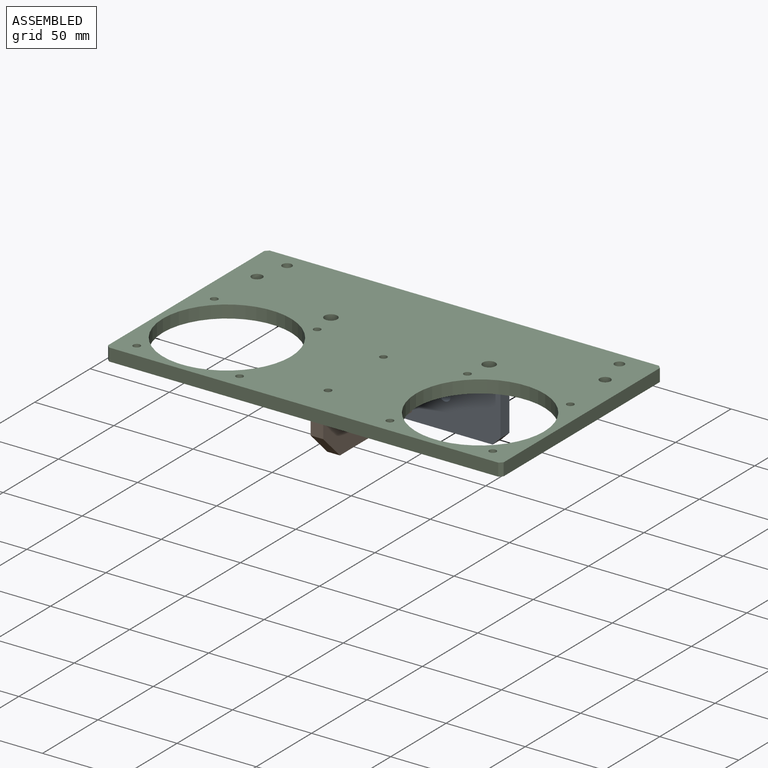
[diagram: assembled view]
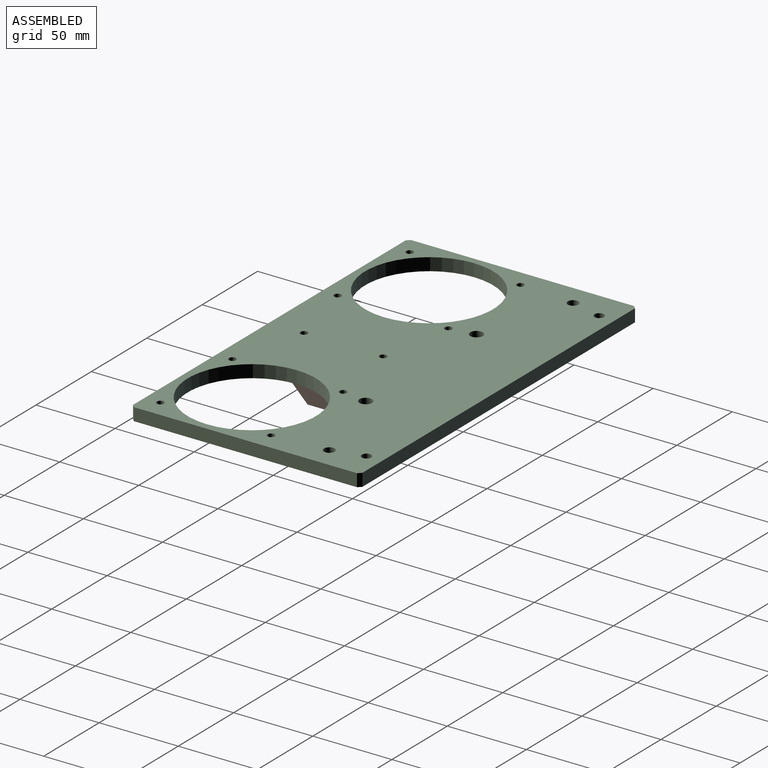
[diagram: assembled view, second angle]
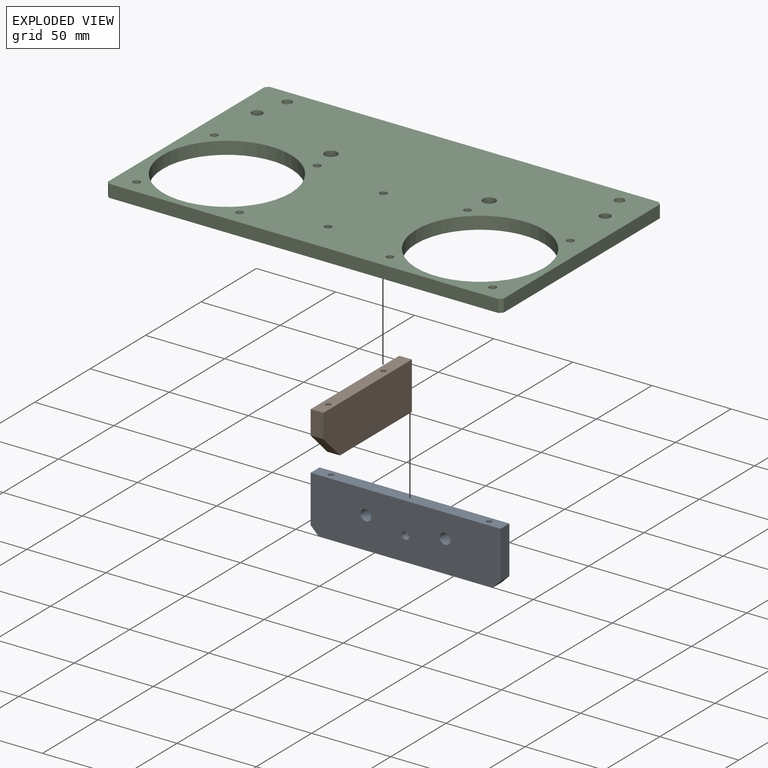
[diagram: exploded view]
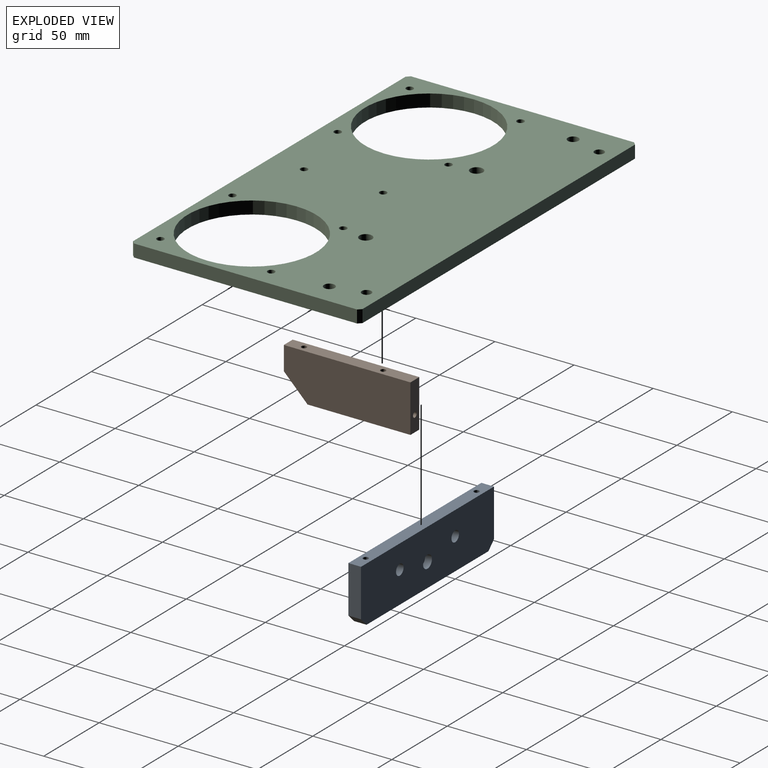
[diagram: exploded view, second angle]
ASSEMBLY  parts=3 mates=2
PART A: 17 faces, bbox 120x35x8 mm
  f0: cylinder r=2.25mm len=4.5mm, axis (0,0,1), area 50.9mm2, adj f7,f9
  f1: plane 120x8mm, normal (0,1,0), area 942.9mm2, adj f2,f6,f7,f8,f11,f13
  f2: plane 30x8mm, normal (-1,0,0), area 240mm2, adj f1,f7,f8,f16
  f3: plane 110x8mm, normal (0,-1,0), area 880mm2, adj f7,f8,f15,f16
  f4: cylinder r=3.4mm len=8mm, axis (0,0,1), area 170.9mm2, adj f7,f8
  f5: cylinder r=3.4mm len=8mm, axis (0,0,1), area 170.9mm2, adj f7,f8
  f6: plane 30x8mm, normal (1,0,0), area 240mm2, adj f1,f7,f8,f15
  f7: plane 120x35mm, normal (0,0,-1), area 4086.5mm2, adj f0,f1,f2,f3,f4,f5,f6,f15
  f8: plane 120x35mm, normal (0,0,1), area 4052.1mm2, adj f1,f2,f3,f4,f5,f6,f10,f15
  f9: plane 8x8mm, normal (0,0,1), area 34.4mm2, adj f0,f10
  f10: cylinder r=4mm len=8mm, axis (0,0,1), area 110.6mm2, adj f8,f9
  f11: cylinder r=1.65mm len=8mm, axis (0,1,0), area 82.9mm2, adj f1,f12
  f12: plane 3.3x3.3mm, normal (0,1,0), area 8.6mm2, adj f11
  f13: cylinder r=1.65mm len=8mm, axis (0,1,0), area 82.9mm2, adj f1,f14
  f14: plane 3.3x3.3mm, normal (0,1,0), area 8.6mm2, adj f13
  f15: plane 8x5mm, normal (0.71,-0.71,0), area 56.6mm2, adj f3,f6,f7,f8
  f16: plane 8x5mm, normal (-0.71,-0.71,0), area 56.6mm2, adj f2,f3,f7,f8
PART B: 13 faces, bbox 80x30x8 mm
  f0: plane 15x8mm, normal (1,0,0), area 120mm2, adj f1,f4,f5,f12
  f1: plane 80x8mm, normal (0,1,0), area 622.9mm2, adj f0,f2,f4,f5,f6,f8
  f2: plane 30x8mm, normal (-1,0,0), area 231.4mm2, adj f1,f3,f4,f5,f10
  f3: plane 65x8mm, normal (0,-1,0), area 520mm2, adj f2,f4,f5,f12
  f4: plane 80x30mm, normal (0,0,-1), area 2287.5mm2, adj f0,f1,f2,f3,f12
  f5: plane 80x30mm, normal (0,0,1), area 2287.5mm2, adj f0,f1,f2,f3,f12
  f6: cylinder r=1.65mm len=8mm, axis (0,1,0), area 82.9mm2, adj f1,f7
  f7: plane 3.3x3.3mm, normal (0,1,0), area 8.6mm2, adj f6
  f8: cylinder r=1.65mm len=8mm, axis (0,1,0), area 82.9mm2, adj f1,f9
  f9: plane 3.3x3.3mm, normal (0,1,0), area 8.6mm2, adj f8
  f10: cylinder r=1.65mm len=8mm, axis (-1,0,0), area 82.9mm2, adj f2,f11
  f11: plane 3.3x3.3mm, normal (-1,0,0), area 8.6mm2, adj f10
  f12: plane 15x15mm, normal (0.71,-0.71,0), area 169.7mm2, adj f0,f3,f4,f5
PART C: 32 faces, bbox 250x145x8 mm
  f0: cylinder r=2.25mm len=4.5mm, axis (0,0,1), area 50.9mm2, adj f22,f24
  f1: cylinder r=2.25mm len=4.5mm, axis (0,0,1), area 50.9mm2, adj f22,f26
  f2: plane 141x8mm, normal (-1,0,0), area 1128mm2, adj f22,f23,f28,f31
  f3: plane 246x8mm, normal (0,-1,0), area 1968mm2, adj f22,f23,f30,f31
  f4: plane 141x8mm, normal (1,0,0), area 1128mm2, adj f22,f23,f29,f30
  f5: cylinder r=2.25mm len=8mm, axis (0,0,1), area 113.1mm2, adj f22,f23
  f6: cylinder r=2.25mm len=8mm, axis (0,0,1), area 113.1mm2, adj f22,f23
  f7: cylinder r=2.25mm len=8mm, axis (0,0,1), area 113.1mm2, adj f22,f23
  f8: cylinder r=2.25mm len=8mm, axis (0,0,1), area 113.1mm2, adj f22,f23
  f9: cylinder r=2.25mm len=8mm, axis (0,0,1), area 113.1mm2, adj f22,f23
  f10: cylinder r=2.25mm len=8mm, axis (0,0,1), area 113.1mm2, adj f22,f23
  f11: cylinder r=2.25mm len=8mm, axis (0,0,1), area 113.1mm2, adj f22,f23
  f12: cylinder r=40.5mm len=81mm, axis (0,0,1), area 2035.8mm2, adj f22,f23
  f13: cylinder r=40.5mm len=81mm, axis (0,0,1), area 2035.8mm2, adj f22,f23
  f14: cylinder r=2.25mm len=8mm, axis (0,0,1), area 113.1mm2, adj f22,f23
  f15: cylinder r=2.25mm len=8mm, axis (0,0,1), area 113.1mm2, adj f22,f23
  f16: cylinder r=3mm len=8mm, axis (0,0,1), area 150.8mm2, adj f22,f23
  f17: cylinder r=3mm len=8mm, axis (0,0,1), area 150.8mm2, adj f22,f23
  f18: cylinder r=3.4mm len=8mm, axis (0,0,1), area 170.9mm2, adj f22,f23
  f19: cylinder r=3.4mm len=8mm, axis (0,0,1), area 170.9mm2, adj f22,f23
  f20: plane 246x8mm, normal (0,1,0), area 1968mm2, adj f22,f23,f28,f29
  f21: cylinder r=2.25mm len=8mm, axis (0,0,1), area 113.1mm2, adj f22,f23
  f22: plane 250x145mm, normal (0,0,-1), area 25616mm2, adj f0,f1,f2,f3,f4,f5,f6,f7
  f23: plane 250x145mm, normal (0,0,1), area 25547.2mm2, adj f2,f3,f4,f5,f6,f7,f8,f9
  f24: plane 8x8mm, normal (0,0,1), area 34.4mm2, adj f0,f25
  f25: cylinder r=4mm len=8mm, axis (0,0,1), area 110.6mm2, adj f23,f24
  f26: plane 8x8mm, normal (0,0,1), area 34.4mm2, adj f1,f27
  f27: cylinder r=4mm len=8mm, axis (0,0,1), area 110.6mm2, adj f23,f26
  f28: plane 8x2mm, normal (-0.71,0.71,0), area 22.6mm2, adj f2,f20,f22,f23
  f29: plane 8x2mm, normal (0.71,0.71,0), area 22.6mm2, adj f4,f20,f22,f23
  f30: plane 8x2mm, normal (0.71,-0.71,0), area 22.6mm2, adj f3,f4,f22,f23
  f31: plane 8x2mm, normal (-0.71,-0.71,0), area 22.6mm2, adj f2,f3,f22,f23
PLACE A rot(axis=(0,0.71,0.71),180deg) t=(185,100,-8)mm
PLACE B rot(axis=(0.58,-0.58,-0.58),120deg) t=(121,12,-8)mm
PLACE C at identity
MATE fastened B.f8 <-> C.f14  axis (0,0,1) through (125,22,-8)mm
MATE fastened A.f11 <-> C.f0  axis (0,0,1) through (175,96,-8)mm
